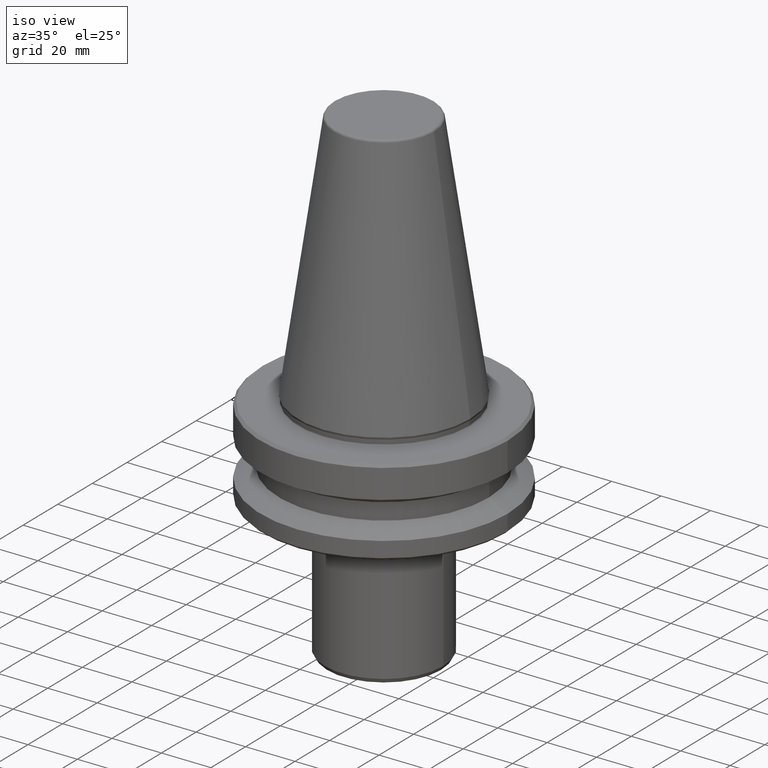
[diagram: clean part render]
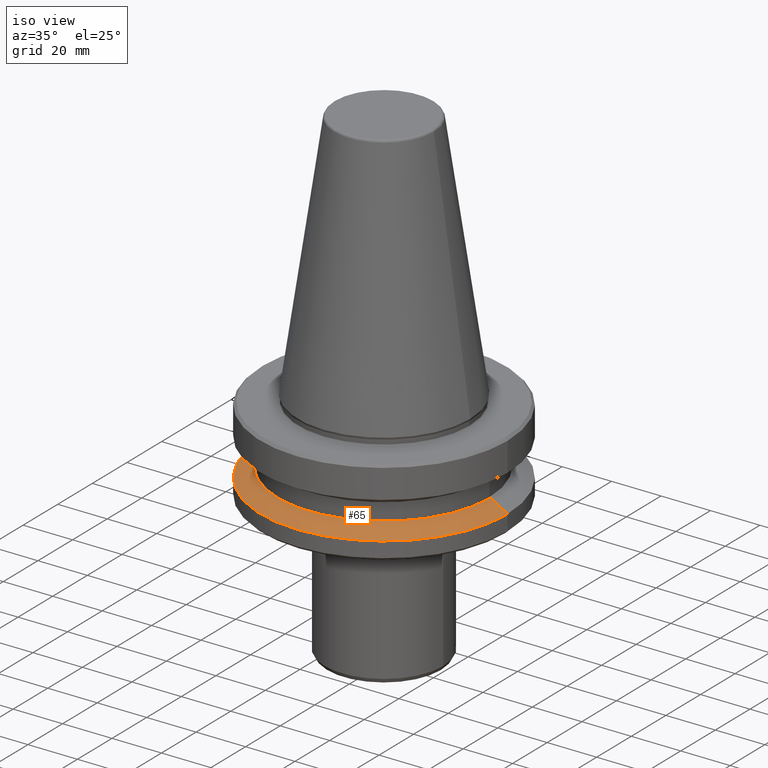
[diagram: same view with one face highlighted and labeled with its STEP entity id]
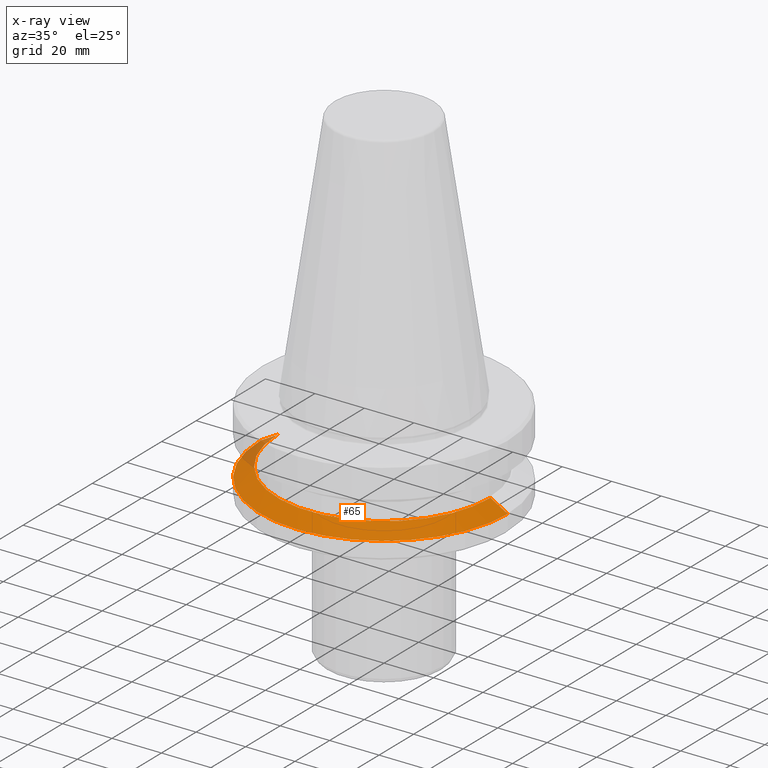
[diagram: x-ray of the same camera — body ghosted, the highlighted face saturated]
A machine part, iso view. The second image highlights one B-rep face of the part: STEP entity #65.
The next image is the same camera in x-ray: the body ghosted, the highlighted face saturated — about 5% of this face is hidden behind the body in this view.
In plain terms, the highlighted conical surface has half-angle 60 deg.
Its self-contained STEP definition (entity closure, byte-faithful):
#3 = CARTESIAN_POINT ( 'NONE',  ( 0.0000000000000000000, 0.0000000000000000000, -30.69977999671412400 ) ) ;
#23 = VERTEX_POINT ( 'NONE', #787 ) ;
#65 = ADVANCED_FACE ( 'NONE', ( #560 ), #532, .T. ) ;
#116 = DIRECTION ( 'NONE',  ( -0.0000000000000000000, -0.0000000000000000000, 1.000000000000000000 ) ) ;
#225 = LINE ( 'NONE', #887, #740 ) ;
#227 = EDGE_CURVE ( 'NONE', #23, #799, #225, .T. ) ;
#235 = EDGE_CURVE ( 'NONE', #728, #664, #492, .T. ) ;
#249 = CARTESIAN_POINT ( 'NONE',  ( 49.99999999999982200, 6.123233995736744000E-015, -30.69977999671412400 ) ) ;
#280 = CARTESIAN_POINT ( 'NONE',  ( 0.0000000000000000000, 0.0000000000000000000, -30.69977999671412400 ) ) ;
#289 = VECTOR ( 'NONE', #344, 1000.000000000000000 ) ;
#344 = DIRECTION ( 'NONE',  ( 0.8660254037844390400, 1.060575238724907400E-016, -0.4999999999999993300 ) ) ;
#358 = CARTESIAN_POINT ( 'NONE',  ( 0.0000000000000000000, 0.0000000000000000000, -26.69999999993998000 ) ) ;
#433 = CIRCLE ( 'NONE', #501, 43.07217782648930900 ) ;
#462 = CARTESIAN_POINT ( 'NONE',  ( 49.99999999999982200, 0.0000000000000000000, -30.69977999671412400 ) ) ;
#480 = DIRECTION ( 'NONE',  ( 1.000000000000000000, 0.0000000000000000000, 0.0000000000000000000 ) ) ;
#492 = LINE ( 'NONE', #249, #289 ) ;
#497 = DIRECTION ( 'NONE',  ( -0.8660254037844390400, 0.0000000000000000000, -0.4999999999999993300 ) ) ;
#501 = AXIS2_PLACEMENT_3D ( 'NONE', #358, #116, #667 ) ;
#510 = AXIS2_PLACEMENT_3D ( 'NONE', #3, #622, #480 ) ;
#532 = CONICAL_SURFACE ( 'NONE', #765, 49.99999999999982200, 1.047197551196598500 ) ;
#560 = FACE_OUTER_BOUND ( 'NONE', #659, .T. ) ;
#590 = EDGE_CURVE ( 'NONE', #23, #728, #433, .T. ) ;
#615 = EDGE_CURVE ( 'NONE', #799, #664, #631, .T. ) ;
#622 = DIRECTION ( 'NONE',  ( -0.0000000000000000000, -0.0000000000000000000, 1.000000000000000000 ) ) ;
#631 = CIRCLE ( 'NONE', #510, 49.99999999999982200 ) ;
#640 = CARTESIAN_POINT ( 'NONE',  ( 43.07217782648930900, 5.699027233244158500E-015, -26.69999999993998000 ) ) ;
#659 = EDGE_LOOP ( 'NONE', ( #954, #969, #757, #928 ) ) ;
#664 = VERTEX_POINT ( 'NONE', #462 ) ;
#667 = DIRECTION ( 'NONE',  ( 1.000000000000000000, 0.0000000000000000000, 0.0000000000000000000 ) ) ;
#672 = DIRECTION ( 'NONE',  ( -1.000000000000000000, 0.0000000000000000000, 0.0000000000000000000 ) ) ;
#728 = VERTEX_POINT ( 'NONE', #640 ) ;
#740 = VECTOR ( 'NONE', #497, 1000.000000000000000 ) ;
#757 = ORIENTED_EDGE ( 'NONE', *, *, #227, .T. ) ;
#765 = AXIS2_PLACEMENT_3D ( 'NONE', #280, #896, #672 ) ;
#787 = CARTESIAN_POINT ( 'NONE',  ( -43.07217782648930900, 0.0000000000000000000, -26.69999999993998000 ) ) ;
#788 = CARTESIAN_POINT ( 'NONE',  ( -49.99999999999982200, 6.123233995736744000E-015, -30.69977999671412400 ) ) ;
#799 = VERTEX_POINT ( 'NONE', #788 ) ;
#887 = CARTESIAN_POINT ( 'NONE',  ( -49.99999999999982200, 0.0000000000000000000, -30.69977999671412400 ) ) ;
#896 = DIRECTION ( 'NONE',  ( 0.0000000000000000000, 0.0000000000000000000, -1.000000000000000000 ) ) ;
#928 = ORIENTED_EDGE ( 'NONE', *, *, #615, .T. ) ;
#954 = ORIENTED_EDGE ( 'NONE', *, *, #235, .F. ) ;
#969 = ORIENTED_EDGE ( 'NONE', *, *, #590, .F. ) ;